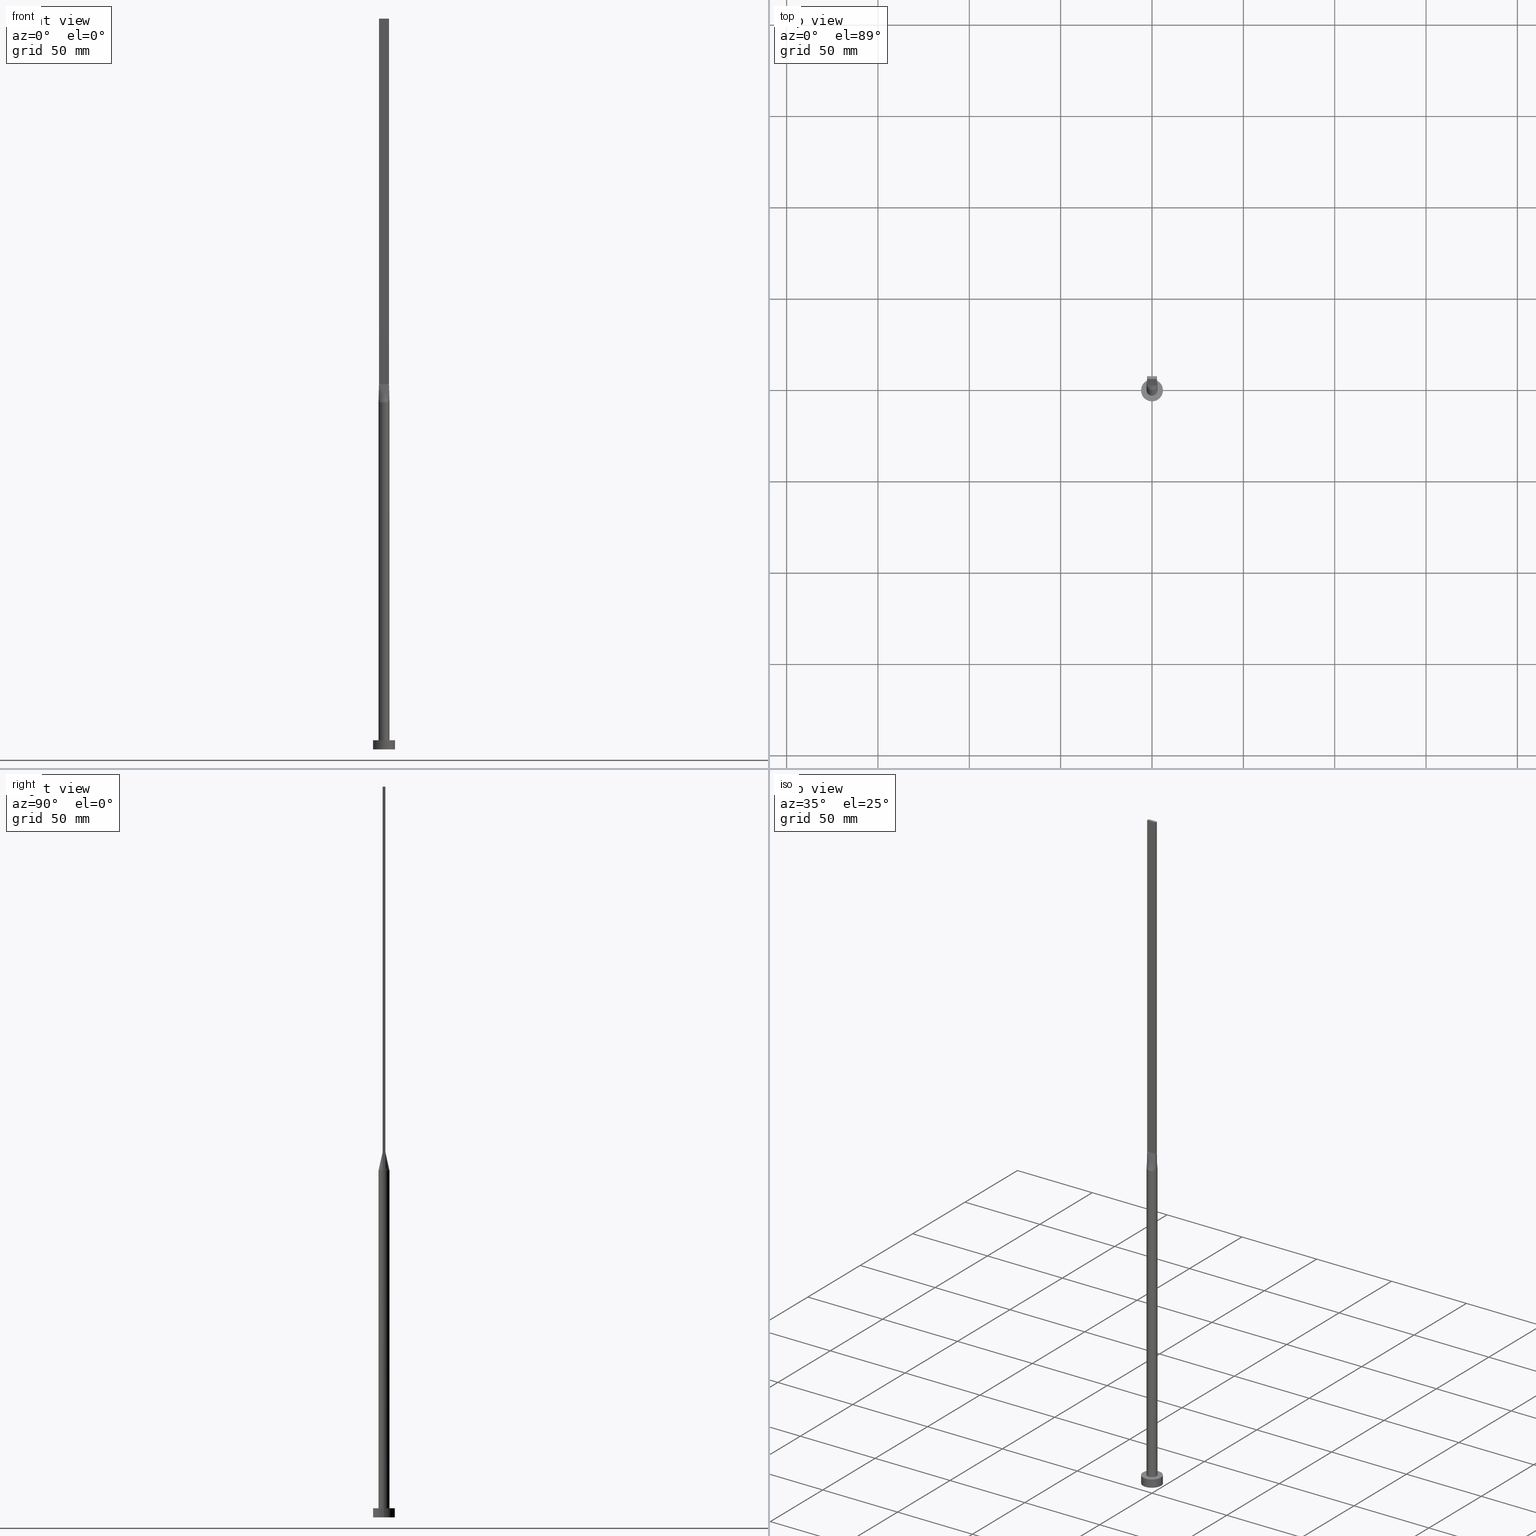
[diagram: canonical four-view strip — front | top / right | iso, engineering-drawing reading convention]
A machine part, canonical four-view strip (front | top / right | iso — engineering-drawing reading convention). The complete STEP part file that produces these views, byte-faithful:
ISO-10303-21;
HEADER;
FILE_DESCRIPTION (( 'STEP AP203' ),
    '1' );
FILE_NAME ('82ba.STEP',
    '2023-02-13T10:49:27',
    ( '' ),
    ( '' ),
    'SwSTEP 2.0',
    'SolidWorks 2019',
    '' );
FILE_SCHEMA (( 'CONFIG_CONTROL_DESIGN' ));
ENDSEC;

DATA;
#1 = DIRECTION ( 'NONE',  ( -1.000000000000000000, 0.000000000000000000, 0.000000000000000000 ) ) ;
#2 = CARTESIAN_POINT ( 'NONE',  ( 0.000000000000000000, 0.000000000000000000, 5.000000000000000000 ) ) ;
#3 = AXIS2_PLACEMENT_3D ( 'NONE', #448, #223, #444 ) ;
#4 = VERTEX_POINT ( 'NONE', #520 ) ;
#5 = PLANE ( 'NONE',  #573 ) ;
#6 = CARTESIAN_POINT ( 'NONE',  ( -6.000000000000000888, 0.000000000000000000, 0.000000000000000000 ) ) ;
#7 = ADVANCED_FACE ( 'NONE', ( #474 ), #274, .T. ) ;
#8 = ORIENTED_EDGE ( 'NONE', *, *, #160, .T. ) ;
#9 = FACE_OUTER_BOUND ( 'NONE', #510, .T. ) ;
#10 = CARTESIAN_POINT ( 'NONE',  ( 2.822145731856598339, 0.7696761086881640512, 195.0000000000000000 ) ) ;
#11 = VERTEX_POINT ( 'NONE', #308 ) ;
#12 = CARTESIAN_POINT ( 'NONE',  ( 2.248179627679386172, 2.014142483996539834, 190.0000000000000284 ) ) ;
#13 = ORIENTED_EDGE ( 'NONE', *, *, #186, .T. ) ;
#14 = CARTESIAN_POINT ( 'NONE',  ( -2.750000000000000000, -0.7499999999999994449, 400.0000000000000000 ) ) ;
#15 = AXIS2_PLACEMENT_3D ( 'NONE', #238, #579, #575 ) ;
#16 = CARTESIAN_POINT ( 'NONE',  ( -1.447928580458858416, 2.653161878569119558, 189.9999999999999716 ) ) ;
#17 = DIRECTION ( 'NONE',  ( 0.000000000000000000, -0.000000000000000000, -1.000000000000000000 ) ) ;
#18 = EDGE_CURVE ( 'NONE', #446, #440, #275, .T. ) ;
#19 = CARTESIAN_POINT ( 'NONE',  ( 1.751288851749022379, 2.458468820606022565, 189.9999999999999716 ) ) ;
#20 = DIRECTION ( 'NONE',  ( 5.913830031739115543E-17, 1.000000000000000000, -0.000000000000000000 ) ) ;
#21 = CARTESIAN_POINT ( 'NONE',  ( 6.000000000000000888, 7.347880794884120722E-16, 5.000000000000000000 ) ) ;
#22 = CC_DESIGN_APPROVAL ( #284, ( #248 ) ) ;
#23 = CARTESIAN_POINT ( 'NONE',  ( -0.4583333333333337034, 0.7500000000000003331, 200.0000000000000000 ) ) ;
#24 = ORIENTED_EDGE ( 'NONE', *, *, #325, .F. ) ;
#25 = ADVANCED_FACE ( 'NONE', ( #400 ), #452, .F. ) ;
#26 = CARTESIAN_POINT ( 'NONE',  ( 0.000000000000000000, 0.000000000000000000, 0.000000000000000000 ) ) ;
#27 = CARTESIAN_POINT ( 'NONE',  ( -0.7628506052746809596, -2.924692134573154245, 189.9999999999999432 ) ) ;
#28 = DIRECTION ( 'NONE',  ( 1.000000000000000000, 0.000000000000000000, 0.000000000000000000 ) ) ;
#29 = CARTESIAN_POINT ( 'NONE',  ( 3.000000000000000888, -0.2678361673275873600, 190.0000000000000568 ) ) ;
#30 = AXIS2_PLACEMENT_3D ( 'NONE', #140, #464, #408 ) ;
#31 = FACE_OUTER_BOUND ( 'NONE', #320, .T. ) ;
#32 = CARTESIAN_POINT ( 'NONE',  ( 0.4583333333333364235, -0.7499999999999995559, 200.0000000000000000 ) ) ;
#33 = ORIENTED_EDGE ( 'NONE', *, *, #499, .T. ) ;
#34 = CARTESIAN_POINT ( 'NONE',  ( 0.000000000000000000, 0.000000000000000000, 5.000000000000000000 ) ) ;
#35 = AXIS2_PLACEMENT_3D ( 'NONE', #215, #164, #86 ) ;
#36 = PERSON_AND_ORGANIZATION_ROLE ( 'design_supplier' ) ;
#37 = APPROVAL_PERSON_ORGANIZATION ( #538, #259, #391 ) ;
#38 = ORIENTED_EDGE ( 'NONE', *, *, #167, .F. ) ;
#39 = AXIS2_PLACEMENT_3D ( 'NONE', #176, #354, #185 ) ;
#40 = CC_DESIGN_PERSON_AND_ORGANIZATION_ASSIGNMENT ( #416, #75, ( #136 ) ) ;
#41 = CARTESIAN_POINT ( 'NONE',  ( 0.4583333333333330373, 0.7500000000000003331, 200.0000000000000284 ) ) ;
#42 = ORIENTED_EDGE ( 'NONE', *, *, #251, .T. ) ;
#43 = SECURITY_CLASSIFICATION_LEVEL ( 'unclassified' ) ;
#44 = DIRECTION ( 'NONE',  ( 1.000000000000000000, -5.913830031739115543E-17, 0.000000000000000000 ) ) ;
#45 = ORIENTED_EDGE ( 'NONE', *, *, #531, .T. ) ;
#46 = EDGE_CURVE ( 'NONE', #4, #443, #249, .T. ) ;
#47 = CARTESIAN_POINT ( 'NONE',  ( 2.733316749964668446, 1.269511353635831341, 189.9999999999999716 ) ) ;
#48 = CIRCLE ( 'NONE', #15, 6.000000000000000888 ) ;
#49 = EDGE_LOOP ( 'NONE', ( #326, #393, #424, #421 ) ) ;
#50 = UNCERTAINTY_MEASURE_WITH_UNIT (LENGTH_MEASURE( 1.000000000000000082E-05 ), #208, 'distance_accuracy_value', 'NONE');
#51 = CARTESIAN_POINT ( 'NONE',  ( 2.750000000000000000, 0.5000000000000006661, 200.0000000000000000 ) ) ;
#52 = VECTOR ( 'NONE', #222, 1000.000000000000000 ) ;
#53 = DIRECTION ( 'NONE',  ( 0.000000000000000000, 0.000000000000000000, 1.000000000000000000 ) ) ;
#54 = VERTEX_POINT ( 'NONE', #6 ) ;
#55 = FACE_OUTER_BOUND ( 'NONE', #313, .T. ) ;
#56 = CARTESIAN_POINT ( 'NONE',  ( -2.894506632021299541, 0.7894116946786272626, 190.0000000000000000 ) ) ;
#57 = CARTESIAN_POINT ( 'NONE',  ( 2.750000000000000000, 0.7500000000000002220, 400.0000000000000000 ) ) ;
#58 = B_SPLINE_CURVE_WITH_KNOTS ( 'NONE', 3,
 ( #508, #324, #512, #505, #156, #19, #369, #145, #458, #333, #70, #110, #285, #501, #466, #469, #280, #112 ),
 .UNSPECIFIED., .F., .F.,
 ( 4, 2, 2, 2, 2, 2, 2, 2, 4 ),
 ( 0.000000000000000000, 0.1250000000000000000, 0.2500000000000000000, 0.3750000000000000000, 0.5000000000000000000, 0.6250000000000000000, 0.7500000000000000000, 0.8750000000000000000, 1.000000000000000000 ),
 .UNSPECIFIED. ) ;
#59 = ORIENTED_EDGE ( 'NONE', *, *, #80, .F. ) ;
#60 = DIRECTION ( 'NONE',  ( 0.000000000000000000, 0.000000000000000000, 1.000000000000000000 ) ) ;
#61 =( GEOMETRIC_REPRESENTATION_CONTEXT ( 3 ) GLOBAL_UNCERTAINTY_ASSIGNED_CONTEXT ( ( #50 ) ) GLOBAL_UNIT_ASSIGNED_CONTEXT ( ( #208, #347, #155 ) ) REPRESENTATION_CONTEXT ( 'NONE', 'WORKASPACE' ) );
#62 = CC_DESIGN_PERSON_AND_ORGANIZATION_ASSIGNMENT ( #572, #486, ( #248 ) ) ;
#63 = DIRECTION ( 'NONE',  ( -0.01442753284129399093, 0.003934781683989408557, 0.9998881756422629552 ) ) ;
#64 = DIRECTION ( 'NONE',  ( -0.000000000000000000, -0.000000000000000000, -1.000000000000000000 ) ) ;
#65 = VERTEX_POINT ( 'NONE', #315 ) ;
#66 = LINE ( 'NONE', #21, #168 ) ;
#67 = ORIENTED_EDGE ( 'NONE', *, *, #18, .T. ) ;
#68 = FACE_OUTER_BOUND ( 'NONE', #146, .T. ) ;
#69 = APPROVAL ( #257, 'NEUR�EN�' ) ;
#70 = CARTESIAN_POINT ( 'NONE',  ( -0.7628506052746797383, 2.924692134573155133, 190.0000000000000284 ) ) ;
#71 = ORIENTED_EDGE ( 'NONE', *, *, #241, .T. ) ;
#72 = CARTESIAN_POINT ( 'NONE',  ( 6.000000000000000888, 7.347880794884120722E-16, 5.000000000000000000 ) ) ;
#73 = AXIS2_PLACEMENT_3D ( 'NONE', #179, #532, #312 ) ;
#74 = LINE ( 'NONE', #242, #368 ) ;
#75 = PERSON_AND_ORGANIZATION_ROLE ( 'creator' ) ;
#76 = DIRECTION ( 'NONE',  ( 1.000000000000000000, 0.000000000000000000, 0.000000000000000000 ) ) ;
#77 = CARTESIAN_POINT ( 'NONE',  ( -1.604166666666664520, -0.7499999999999995559, 200.0000000000000000 ) ) ;
#78 = APPLICATION_PROTOCOL_DEFINITION ( 'international standard', 'config_control_design', 1994, #149 ) ;
#79 = CARTESIAN_POINT ( 'NONE',  ( -2.894291463713197121, -0.7893522173763257710, 190.0000000000000000 ) ) ;
#80 = EDGE_CURVE ( 'NONE', #269, #125, #227, .T. ) ;
#81 = CIRCLE ( 'NONE', #402, 6.000000000000000888 ) ;
#82 = AXIS2_PLACEMENT_3D ( 'NONE', #2, #219, #100 ) ;
#83 = CARTESIAN_POINT ( 'NONE',  ( -2.248179627679386616, -2.014142483996539390, 190.0000000000000000 ) ) ;
#84 = DATE_AND_TIME ( #399, #546 ) ;
#85 = VERTEX_POINT ( 'NONE', #404 ) ;
#86 = DIRECTION ( 'NONE',  ( 1.000000000000000000, 0.000000000000000000, 0.000000000000000000 ) ) ;
#87 = EDGE_CURVE ( 'NONE', #440, #349, #169, .T. ) ;
#88 = DATE_AND_TIME ( #127, #553 ) ;
#89 = ORIENTED_EDGE ( 'NONE', *, *, #109, .T. ) ;
#90 = CALENDAR_DATE ( 2023, 13, 2 ) ;
#91 = VECTOR ( 'NONE', #321, 1000.000000000000000 ) ;
#92 = CARTESIAN_POINT ( 'NONE',  ( 1.447928580458859305, 2.653161878569118670, 190.0000000000000284 ) ) ;
#93 = CARTESIAN_POINT ( 'NONE',  ( 0.000000000000000000, 0.000000000000000000, 5.000000000000000000 ) ) ;
#94 = ORIENTED_EDGE ( 'NONE', *, *, #429, .F. ) ;
#95 = CC_DESIGN_PERSON_AND_ORGANIZATION_ASSIGNMENT ( #216, #36, ( #153 ) ) ;
#96 = DIRECTION ( 'NONE',  ( 1.000000000000000000, 0.000000000000000000, -0.000000000000000000 ) ) ;
#97 = FACE_OUTER_BOUND ( 'NONE', #537, .T. ) ;
#98 = CARTESIAN_POINT ( 'NONE',  ( 2.830829925251657997, 1.022044525068634302, 190.0000000000000000 ) ) ;
#99 = LINE ( 'NONE', #363, #355 ) ;
#100 = DIRECTION ( 'NONE',  ( 1.000000000000000000, 0.000000000000000000, 0.000000000000000000 ) ) ;
#101 = B_SPLINE_SURFACE_WITH_KNOTS ( 'NONE', 3, 1, ( 
 ( #568, #254 ),
 ( #337, #295 ),
 ( #29, #207 ),
 ( #163, #341 ),
 ( #541, #51 ),
 ( #277, #143 ) ),
 .UNSPECIFIED., .F., .F., .F.,
 ( 4, 2, 4 ),
 ( 2, 2 ),
 ( 0.000000000000000000, 0.5000000000000000000, 1.000000000000000000 ),
 ( 0.000000000000000000, 1.000000000000000000 ),
 .UNSPECIFIED. ) ;
#102 = DIRECTION ( 'NONE',  ( -1.000000000000000000, -0.000000000000000000, -0.000000000000000000 ) ) ;
#103 = EDGE_CURVE ( 'NONE', #349, #440, #434, .T. ) ;
#104 = PLANE ( 'NONE',  #206 ) ;
#105 = LINE ( 'NONE', #463, #114 ) ;
#106 = CARTESIAN_POINT ( 'NONE',  ( -2.822145731856598339, 0.7696761086881630520, 195.0000000000000000 ) ) ;
#107 = CARTESIAN_POINT ( 'NONE',  ( -0.2291666666666670460, 0.7500000000000003331, 200.0000000000000284 ) ) ;
#108 = ORIENTED_EDGE ( 'NONE', *, *, #195, .T. ) ;
#109 = EDGE_CURVE ( 'NONE', #128, #142, #278, .T. ) ;
#110 = CARTESIAN_POINT ( 'NONE',  ( -1.447928580458858416, 2.653161878569119558, 189.9999999999999716 ) ) ;
#111 = ORIENTED_EDGE ( 'NONE', *, *, #465, .T. ) ;
#112 = CARTESIAN_POINT ( 'NONE',  ( -2.894506632021299541, 0.7894116946786272626, 190.0000000000000000 ) ) ;
#113 = CC_DESIGN_APPROVAL ( #69, ( #136 ) ) ;
#114 = VECTOR ( 'NONE', #374, 1000.000000000000000 ) ;
#115 = DATE_AND_TIME ( #564, #200 ) ;
#116 = CARTESIAN_POINT ( 'NONE',  ( -1.447928580458859749, -2.653161878569118226, 190.0000000000000000 ) ) ;
#117 = CARTESIAN_POINT ( 'NONE',  ( -2.963522232943966106, -0.5355060635301720495, 190.0000000000000000 ) ) ;
#118 = CARTESIAN_POINT ( 'NONE',  ( -2.520833333333333037, -0.7499999999999994449, 200.0000000000000000 ) ) ;
#119 = EDGE_CURVE ( 'NONE', #450, #65, #379, .T. ) ;
#120 = PERSON_AND_ORGANIZATION_ROLE ( 'design_owner' ) ;
#121 = DIRECTION ( 'NONE',  ( -0.000000000000000000, -0.000000000000000000, -1.000000000000000000 ) ) ;
#122 = LINE ( 'NONE', #260, #525 ) ;
#123 = ORIENTED_EDGE ( 'NONE', *, *, #221, .T. ) ;
#124 = FACE_OUTER_BOUND ( 'NONE', #240, .T. ) ;
#125 = VERTEX_POINT ( 'NONE', #530 ) ;
#126 = ADVANCED_FACE ( 'NONE', ( #359 ), #494, .T. ) ;
#127 = CALENDAR_DATE ( 2023, 13, 2 ) ;
#128 = VERTEX_POINT ( 'NONE', #453 ) ;
#129 = PERSON_AND_ORGANIZATION ( #488, #432 ) ;
#130 = CARTESIAN_POINT ( 'NONE',  ( 1.751288851749022379, 2.458468820606022565, 189.9999999999999716 ) ) ;
#131 = MANIFOLD_SOLID_BREP ( 'P�idat vysunut�m5', #237 ) ;
#132 = DIRECTION ( 'NONE',  ( 1.000000000000000000, 0.000000000000000000, 0.000000000000000000 ) ) ;
#133 = VECTOR ( 'NONE', #250, 1000.000000000000000 ) ;
#134 = ORIENTED_EDGE ( 'NONE', *, *, #577, .T. ) ;
#135 = DIRECTION ( 'NONE',  ( 1.000000000000000000, 0.000000000000000000, -0.000000000000000000 ) ) ;
#136 = PRODUCT_DEFINITION ( 'NEZN�M�', '', #153, #317 ) ;
#137 = DIRECTION ( 'NONE',  ( 1.000000000000000000, 0.000000000000000000, 0.000000000000000000 ) ) ;
#138 = DIRECTION ( 'NONE',  ( 0.000000000000000000, 0.000000000000000000, 1.000000000000000000 ) ) ;
#139 = EDGE_LOOP ( 'NONE', ( #217, #467, #94, #243, #67, #272 ) ) ;
#140 = CARTESIAN_POINT ( 'NONE',  ( 0.000000000000000000, 0.000000000000000000, 0.000000000000000000 ) ) ;
#141 = CARTESIAN_POINT ( 'NONE',  ( -3.000000000000000444, 0.000000000000000000, 190.0000000000000000 ) ) ;
#142 = VERTEX_POINT ( 'NONE', #539 ) ;
#143 = CARTESIAN_POINT ( 'NONE',  ( 2.750000000000000000, 0.7500000000000002220, 200.0000000000000000 ) ) ;
#144 = ADVANCED_FACE ( 'NONE', ( #362 ), #536, .F. ) ;
#145 = CARTESIAN_POINT ( 'NONE',  ( 0.7628506052746800714, 2.924692134573154689, 190.0000000000000284 ) ) ;
#146 = EDGE_LOOP ( 'NONE', ( #151, #563, #231, #540, #343, #534 ) ) ;
#147 = LINE ( 'NONE', #460, #451 ) ;
#148 = DIRECTION ( 'NONE',  ( -1.000000000000000000, 0.000000000000000000, 0.000000000000000000 ) ) ;
#149 = APPLICATION_CONTEXT ( 'configuration controlled 3d designs of mechanical parts and assemblies' ) ;
#150 = CARTESIAN_POINT ( 'NONE',  ( 2.750000000000000000, 0.7500000000000002220, 200.0000000000000000 ) ) ;
#151 = ORIENTED_EDGE ( 'NONE', *, *, #465, .F. ) ;
#152 = ADVANCED_FACE ( 'NONE', ( #55 ), #366, .T. ) ;
#153 = PRODUCT_DEFINITION_FORMATION_WITH_SPECIFIED_SOURCE ( 'LIBOVOLN�', '', #502, .NOT_KNOWN. ) ;
#154 = LINE ( 'NONE', #150, #514 ) ;
#155 =( NAMED_UNIT ( * ) SI_UNIT ( $, .STERADIAN. ) SOLID_ANGLE_UNIT ( ) );
#156 = CARTESIAN_POINT ( 'NONE',  ( 2.248179627679386172, 2.014142483996539834, 190.0000000000000284 ) ) ;
#157 = APPROVAL_PERSON_ORGANIZATION ( #253, #69, #428 ) ;
#158 = DIRECTION ( 'NONE',  ( -0.000000000000000000, -0.000000000000000000, -1.000000000000000000 ) ) ;
#159 = CARTESIAN_POINT ( 'NONE',  ( 0.000000000000000000, 0.000000000000000000, 5.000000000000000000 ) ) ;
#160 = EDGE_CURVE ( 'NONE', #331, #247, #74, .T. ) ;
#161 = CARTESIAN_POINT ( 'NONE',  ( 2.750000000000000000, 0.7500000000000002220, 400.0000000000000000 ) ) ;
#162 = ORIENTED_EDGE ( 'NONE', *, *, #332, .T. ) ;
#163 = CARTESIAN_POINT ( 'NONE',  ( 3.000000000000000444, 0.2678361673275868049, 190.0000000000000284 ) ) ;
#164 = DIRECTION ( 'NONE',  ( 0.000000000000000000, 0.000000000000000000, 1.000000000000000000 ) ) ;
#165 = DATE_TIME_ROLE ( 'creation_date' ) ;
#166 = CARTESIAN_POINT ( 'NONE',  ( -2.291666666666665186, -0.7499999999999995559, 200.0000000000000000 ) ) ;
#167 = EDGE_CURVE ( 'NONE', #470, #11, #105, .T. ) ;
#168 = VECTOR ( 'NONE', #198, 1000.000000000000000 ) ;
#169 = CIRCLE ( 'NONE', #395, 3.000000000000000444 ) ;
#170 = AXIS2_PLACEMENT_3D ( 'NONE', #403, #53, #445 ) ;
#171 = DATE_TIME_ROLE ( 'classification_date' ) ;
#172 = CARTESIAN_POINT ( 'NONE',  ( 1.751288851749020603, -2.458468820606023897, 190.0000000000000000 ) ) ;
#173 = APPROVAL_STATUS ( 'not_yet_approved' ) ;
#174 = SHAPE_DEFINITION_REPRESENTATION ( #468, #218 ) ;
#175 = CARTESIAN_POINT ( 'NONE',  ( -1.145833333333330817, -0.7499999999999995559, 200.0000000000000284 ) ) ;
#176 = CARTESIAN_POINT ( 'NONE',  ( 0.000000000000000000, 0.000000000000000000, 5.000000000000000000 ) ) ;
#177 = ORIENTED_EDGE ( 'NONE', *, *, #371, .F. ) ;
#178 = AXIS2_PLACEMENT_3D ( 'NONE', #194, #549, #76 ) ;
#179 = CARTESIAN_POINT ( 'NONE',  ( 0.000000000000000000, 0.000000000000000000, 190.0000000000000000 ) ) ;
#180 = ORIENTED_EDGE ( 'NONE', *, *, #523, .F. ) ;
#181 = DIRECTION ( 'NONE',  ( 0.000000000000000000, 0.000000000000000000, 1.000000000000000000 ) ) ;
#182 = CARTESIAN_POINT ( 'NONE',  ( -2.750000000000000000, -0.7499999999999994449, 200.0000000000000000 ) ) ;
#183 = ORIENTED_EDGE ( 'NONE', *, *, #298, .F. ) ;
#184 = B_SPLINE_SURFACE_WITH_KNOTS ( 'NONE', 3, 1, ( 
 ( #348, #557 ),
 ( #339, #342 ),
 ( #477, #473 ),
 ( #426, #517 ),
 ( #117, #480 ),
 ( #365, #229 ) ),
 .UNSPECIFIED., .F., .F., .F.,
 ( 4, 2, 4 ),
 ( 2, 2 ),
 ( 0.000000000000000000, 0.5000000000000000000, 1.000000000000000000 ),
 ( 0.000000000000000000, 1.000000000000000000 ),
 .UNSPECIFIED. ) ;
#185 = DIRECTION ( 'NONE',  ( -1.000000000000000000, 0.000000000000000000, 0.000000000000000000 ) ) ;
#186 = EDGE_CURVE ( 'NONE', #142, #85, #196, .T. ) ;
#187 = CARTESIAN_POINT ( 'NONE',  ( -2.750000000000000000, 0.7500000000000002220, 400.0000000000000000 ) ) ;
#188 = FACE_OUTER_BOUND ( 'NONE', #139, .T. ) ;
#189 = CC_DESIGN_APPROVAL ( #259, ( #153 ) ) ;
#190 = ORIENTED_EDGE ( 'NONE', *, *, #556, .F. ) ;
#191 = DIRECTION ( 'NONE',  ( -1.000000000000000000, 5.913830031739115543E-17, 0.000000000000000000 ) ) ;
#192 = CARTESIAN_POINT ( 'NONE',  ( 0.000000000000000000, 0.000000000000000000, 5.000000000000000000 ) ) ;
#193 = CARTESIAN_POINT ( 'NONE',  ( -1.145833333333333703, 0.7500000000000002220, 200.0000000000000000 ) ) ;
#194 = CARTESIAN_POINT ( 'NONE',  ( 0.000000000000000000, 0.000000000000000000, 190.0000000000000000 ) ) ;
#195 = EDGE_CURVE ( 'NONE', #11, #269, #548, .T. ) ;
#196 = LINE ( 'NONE', #412, #441 ) ;
#197 = CARTESIAN_POINT ( 'NONE',  ( 0.000000000000000000, 0.000000000000000000, 400.0000000000000000 ) ) ;
#198 = DIRECTION ( 'NONE',  ( -0.000000000000000000, -0.000000000000000000, -1.000000000000000000 ) ) ;
#199 = EDGE_LOOP ( 'NONE', ( #13, #417, #375, #401 ) ) ;
#200 = LOCAL_TIME ( 11, 49, 27.00000000000000000, #558 ) ;
#201 = CARTESIAN_POINT ( 'NONE',  ( -0.3818979204996078569, 3.000000000000000888, 190.0000000000000284 ) ) ;
#202 = EDGE_LOOP ( 'NONE', ( #323, #134 ) ) ;
#203 = DIRECTION ( 'NONE',  ( -0.000000000000000000, -0.000000000000000000, -1.000000000000000000 ) ) ;
#204 = ORIENTED_EDGE ( 'NONE', *, *, #542, .F. ) ;
#205 = EDGE_CURVE ( 'NONE', #125, #142, #154, .T. ) ;
#206 = AXIS2_PLACEMENT_3D ( 'NONE', #14, #20, #191 ) ;
#207 = CARTESIAN_POINT ( 'NONE',  ( 2.750000000000000000, -0.2499999999999990286, 200.0000000000000000 ) ) ;
#208 =( LENGTH_UNIT ( ) NAMED_UNIT ( * ) SI_UNIT ( .MILLI., .METRE. ) );
#209 = CARTESIAN_POINT ( 'NONE',  ( -2.750000000000000000, -0.7499999999999994449, 400.0000000000000000 ) ) ;
#210 = EDGE_LOOP ( 'NONE', ( #311, #334, #33, #24 ) ) ;
#211 = CARTESIAN_POINT ( 'NONE',  ( -2.822145731856598783, -0.7696761086881626079, 195.0000000000000000 ) ) ;
#212 = ADVANCED_FACE ( 'NONE', ( #188 ), #509, .T. ) ;
#213 = CARTESIAN_POINT ( 'NONE',  ( 1.447928580458857972, -2.653161878569119558, 189.9999999999999432 ) ) ;
#214 = CARTESIAN_POINT ( 'NONE',  ( 0.000000000000000000, 0.000000000000000000, 190.0000000000000000 ) ) ;
#215 = CARTESIAN_POINT ( 'NONE',  ( 0.000000000000000000, 0.000000000000000000, 190.0000000000000000 ) ) ;
#216 = PERSON_AND_ORGANIZATION ( #488, #432 ) ;
#217 = ORIENTED_EDGE ( 'NONE', *, *, #454, .F. ) ;
#218 = ADVANCED_BREP_SHAPE_REPRESENTATION ( '82ba', ( #131, #30 ), #61 ) ;
#219 = DIRECTION ( 'NONE',  ( 0.000000000000000000, 0.000000000000000000, 1.000000000000000000 ) ) ;
#220 = ORIENTED_EDGE ( 'NONE', *, *, #109, .F. ) ;
#221 = EDGE_CURVE ( 'NONE', #128, #381, #58, .T. ) ;
#222 = DIRECTION ( 'NONE',  ( -0.01442753284129399093, -0.003934781683989386873, 0.9998881756422629552 ) ) ;
#223 = DIRECTION ( 'NONE',  ( 0.000000000000000000, 0.000000000000000000, 1.000000000000000000 ) ) ;
#224 = LOCAL_TIME ( 11, 49, 27.00000000000000000, #570 ) ;
#225 = CARTESIAN_POINT ( 'NONE',  ( 0.000000000000000000, 0.000000000000000000, 0.000000000000000000 ) ) ;
#226 = ORIENTED_EDGE ( 'NONE', *, *, #493, .F. ) ;
#227 = LINE ( 'NONE', #182, #411 ) ;
#228 = EDGE_CURVE ( 'NONE', #443, #358, #66, .T. ) ;
#229 = CARTESIAN_POINT ( 'NONE',  ( -2.750000000000000000, -0.7499999999999993339, 200.0000000000000000 ) ) ;
#230 = CARTESIAN_POINT ( 'NONE',  ( 2.291666666666666519, 0.7500000000000002220, 200.0000000000000000 ) ) ;
#231 = ORIENTED_EDGE ( 'NONE', *, *, #103, .T. ) ;
#232 = FACE_OUTER_BOUND ( 'NONE', #516, .T. ) ;
#233 = DIRECTION ( 'NONE',  ( -1.000000000000000000, 0.000000000000000000, 0.000000000000000000 ) ) ;
#234 = CIRCLE ( 'NONE', #367, 3.000000000000000444 ) ;
#235 = ORIENTED_EDGE ( 'NONE', *, *, #523, .T. ) ;
#236 = CARTESIAN_POINT ( 'NONE',  ( 2.750000000000000000, 0.7500000000000002220, 400.0000000000000000 ) ) ;
#237 = CLOSED_SHELL ( 'NONE', ( #551, #447, #126, #291, #25, #212, #7, #344, #266, #152, #394, #144, #387, #314, #352 ) ) ;
#238 = CARTESIAN_POINT ( 'NONE',  ( 0.000000000000000000, 0.000000000000000000, 0.000000000000000000 ) ) ;
#239 = CARTESIAN_POINT ( 'NONE',  ( -0.9166666666666669627, 0.7500000000000002220, 200.0000000000000000 ) ) ;
#240 = EDGE_LOOP ( 'NONE', ( #296, #183, #545, #503 ) ) ;
#241 = EDGE_CURVE ( 'NONE', #247, #470, #376, .T. ) ;
#242 = CARTESIAN_POINT ( 'NONE',  ( 2.750000000000000000, -0.7499999999999997780, 400.0000000000000000 ) ) ;
#243 = ORIENTED_EDGE ( 'NONE', *, *, #251, .F. ) ;
#244 = CARTESIAN_POINT ( 'NONE',  ( 2.750000000000000000, -0.7499999999999997780, 400.0000000000000000 ) ) ;
#245 = CARTESIAN_POINT ( 'NONE',  ( -1.751288851749021491, 2.458468820606022565, 190.0000000000000284 ) ) ;
#246 = VECTOR ( 'NONE', #233, 1000.000000000000000 ) ;
#247 = VERTEX_POINT ( 'NONE', #161 ) ;
#248 = SECURITY_CLASSIFICATION ( '', '', #43 ) ;
#249 = CIRCLE ( 'NONE', #170, 6.000000000000000888 ) ;
#250 = DIRECTION ( 'NONE',  ( -0.000000000000000000, -0.000000000000000000, -1.000000000000000000 ) ) ;
#251 = EDGE_CURVE ( 'NONE', #446, #506, #571, .T. ) ;
#252 = CARTESIAN_POINT ( 'NONE',  ( 2.442412046818594362, -1.765588549521970751, 190.0000000000000000 ) ) ;
#253 = PERSON_AND_ORGANIZATION ( #488, #432 ) ;
#254 = CARTESIAN_POINT ( 'NONE',  ( 2.750000000000000000, -0.7499999999999997780, 200.0000000000000000 ) ) ;
#255 = DIRECTION ( 'NONE',  ( 0.000000000000000000, 0.000000000000000000, 1.000000000000000000 ) ) ;
#256 = CARTESIAN_POINT ( 'NONE',  ( -0.9166666666666638541, -0.7499999999999995559, 200.0000000000000284 ) ) ;
#257 = APPROVAL_STATUS ( 'not_yet_approved' ) ;
#258 = VECTOR ( 'NONE', #524, 1000.000000000000000 ) ;
#259 = APPROVAL ( #173, 'NEUR�EN�' ) ;
#260 = CARTESIAN_POINT ( 'NONE',  ( -2.750000000000000000, 0.7500000000000002220, 200.0000000000000000 ) ) ;
#261 = CARTESIAN_POINT ( 'NONE',  ( 0.2291666666666698216, -0.7499999999999995559, 200.0000000000000284 ) ) ;
#262 = CARTESIAN_POINT ( 'NONE',  ( -2.733316749964668446, -1.269511353635829787, 190.0000000000000568 ) ) ;
#263 = CIRCLE ( 'NONE', #178, 3.000000000000000444 ) ;
#264 = COORDINATED_UNIVERSAL_TIME_OFFSET ( 1, 0, .AHEAD. ) ;
#265 = CARTESIAN_POINT ( 'NONE',  ( 0.9166666666666664076, 0.7500000000000003331, 200.0000000000000284 ) ) ;
#266 = ADVANCED_FACE ( 'NONE', ( #31 ), #184, .T. ) ;
#267 = ORIENTED_EDGE ( 'NONE', *, *, #371, .T. ) ;
#268 = CARTESIAN_POINT ( 'NONE',  ( 2.894291463713197121, 0.7893522173763263261, 190.0000000000000000 ) ) ;
#269 = VERTEX_POINT ( 'NONE', #457 ) ;
#270 = DATE_AND_TIME ( #90, #224 ) ;
#271 = CARTESIAN_POINT ( 'NONE',  ( 2.750000000000000000, -0.7499999999999997780, 200.0000000000000000 ) ) ;
#272 = ORIENTED_EDGE ( 'NONE', *, *, #87, .T. ) ;
#273 = DIRECTION ( 'NONE',  ( -0.000000000000000000, -0.000000000000000000, -1.000000000000000000 ) ) ;
#274 = B_SPLINE_SURFACE_WITH_KNOTS ( 'NONE', 3, 1, ( 
 ( #79, #576 ),
 ( #482, #118 ),
 ( #262, #166 ),
 ( #478, #300 ),
 ( #83, #77 ),
 ( #439, #175 ),
 ( #116, #256 ),
 ( #27, #574 ),
 ( #567, #433 ),
 ( #340, #261 ),
 ( #294, #32 ),
 ( #213, #388 ),
 ( #172, #351 ),
 ( #565, #529 ),
 ( #252, #427 ),
 ( #389, #526 ),
 ( #304, #487 ),
 ( #500, #271 ) ),
 .UNSPECIFIED., .F., .F., .F.,
 ( 4, 2, 2, 2, 2, 2, 2, 2, 4 ),
 ( 2, 2 ),
 ( 0.000000000000000000, 0.1250000000000000000, 0.2500000000000000000, 0.3750000000000000000, 0.5000000000000000000, 0.6250000000000000000, 0.7500000000000000000, 0.8750000000000000000, 1.000000000000000000 ),
 ( 0.000000000000000000, 1.000000000000000000 ),
 .UNSPECIFIED. ) ;
#275 = LINE ( 'NONE', #141, #535 ) ;
#276 = AXIS2_PLACEMENT_3D ( 'NONE', #225, #138, #135 ) ;
#277 = CARTESIAN_POINT ( 'NONE',  ( 2.894291463713196677, 0.7893522173763277694, 190.0000000000000000 ) ) ;
#278 = LINE ( 'NONE', #10, #52 ) ;
#279 = ORIENTED_EDGE ( 'NONE', *, *, #493, .T. ) ;
#280 = CARTESIAN_POINT ( 'NONE',  ( -2.830829925251659329, 1.022044525068634302, 190.0000000000000568 ) ) ;
#281 = PLANE ( 'NONE',  #309 ) ;
#282 = DIRECTION ( 'NONE',  ( -0.000000000000000000, -0.000000000000000000, -1.000000000000000000 ) ) ;
#283 = CARTESIAN_POINT ( 'NONE',  ( -2.830829925251659329, 1.022044525068634302, 190.0000000000000568 ) ) ;
#284 = APPROVAL ( #397, 'NEUR�EN�' ) ;
#285 = CARTESIAN_POINT ( 'NONE',  ( -1.751288851749021491, 2.458468820606022565, 190.0000000000000284 ) ) ;
#286 = ORIENTED_EDGE ( 'NONE', *, *, #205, .F. ) ;
#287 = CARTESIAN_POINT ( 'NONE',  ( -1.833333333333333481, 0.7500000000000002220, 200.0000000000000000 ) ) ;
#288 = ORIENTED_EDGE ( 'NONE', *, *, #195, .F. ) ;
#289 = DIRECTION ( 'NONE',  ( 0.000000000000000000, 0.000000000000000000, 1.000000000000000000 ) ) ;
#290 = APPLICATION_CONTEXT ( 'configuration controlled 3d designs of mechanical parts and assemblies' ) ;
#291 = ADVANCED_FACE ( 'NONE', ( #462, #406 ), #415, .T. ) ;
#292 = CARTESIAN_POINT ( 'NONE',  ( -0.7628506052746797383, 2.924692134573155133, 190.0000000000000284 ) ) ;
#293 = LOCAL_TIME ( 11, 49, 27.00000000000000000, #345 ) ;
#294 = CARTESIAN_POINT ( 'NONE',  ( 0.7628506052746785171, -2.924692134573155577, 190.0000000000000000 ) ) ;
#295 = CARTESIAN_POINT ( 'NONE',  ( 2.750000000000000000, -0.4999999999999992784, 200.0000000000000000 ) ) ;
#296 = ORIENTED_EDGE ( 'NONE', *, *, #205, .T. ) ;
#297 = FACE_OUTER_BOUND ( 'NONE', #210, .T. ) ;
#298 = EDGE_CURVE ( 'NONE', #247, #142, #346, .T. ) ;
#299 = CARTESIAN_POINT ( 'NONE',  ( 2.750000000000000000, 0.7500000000000002220, 400.0000000000000000 ) ) ;
#300 = CARTESIAN_POINT ( 'NONE',  ( -1.833333333333331261, -0.7499999999999995559, 200.0000000000000000 ) ) ;
#301 = DATE_AND_TIME ( #522, #293 ) ;
#302 = AXIS2_PLACEMENT_3D ( 'NONE', #192, #273, #1 ) ;
#303 = CARTESIAN_POINT ( 'NONE',  ( 3.000000000000000444, 3.673940397442060361E-16, 190.0000000000000000 ) ) ;
#304 = CARTESIAN_POINT ( 'NONE',  ( 2.830829925251657997, -1.022044525068636078, 190.0000000000000284 ) ) ;
#305 = CARTESIAN_POINT ( 'NONE',  ( 2.750000000000000000, -0.7499999999999997780, 400.0000000000000000 ) ) ;
#306 = EDGE_LOOP ( 'NONE', ( #455, #459 ) ) ;
#307 = PRODUCT_RELATED_PRODUCT_CATEGORY ( 'detail', '', ( #502 ) ) ;
#308 = CARTESIAN_POINT ( 'NONE',  ( -2.750000000000000000, -0.7499999999999994449, 400.0000000000000000 ) ) ;
#309 = AXIS2_PLACEMENT_3D ( 'NONE', #236, #414, #17 ) ;
#310 = DIRECTION ( 'NONE',  ( -0.000000000000000000, 0.000000000000000000, -1.000000000000000000 ) ) ;
#311 = ORIENTED_EDGE ( 'NONE', *, *, #577, .F. ) ;
#312 = DIRECTION ( 'NONE',  ( 1.000000000000000000, -5.329070518200751394E-15, 0.000000000000000000 ) ) ;
#313 = EDGE_LOOP ( 'NONE', ( #123, #267, #513, #220 ) ) ;
#314 = ADVANCED_FACE ( 'NONE', ( #124 ), #5, .F. ) ;
#315 = CARTESIAN_POINT ( 'NONE',  ( 3.000000000000000888, 4.817174831141495148E-17, 190.0000000000000284 ) ) ;
#316 = ORIENTED_EDGE ( 'NONE', *, *, #87, .F. ) ;
#317 = DESIGN_CONTEXT ( 'detailed design', #149, 'design' ) ;
#318 = PLANE ( 'NONE',  #335 ) ;
#319 = DIRECTION ( 'NONE',  ( 0.000000000000000000, 0.000000000000000000, 1.000000000000000000 ) ) ;
#320 = EDGE_LOOP ( 'NONE', ( #162, #42, #436, #204, #177 ) ) ;
#321 = DIRECTION ( 'NONE',  ( 0.01442753284129399093, -0.003934781683989191717, 0.9998881756422629552 ) ) ;
#322 = CARTESIAN_POINT ( 'NONE',  ( -2.750000000000000000, 0.7500000000000002220, 200.0000000000000000 ) ) ;
#323 = ORIENTED_EDGE ( 'NONE', *, *, #46, .T. ) ;
#324 = CARTESIAN_POINT ( 'NONE',  ( 2.830829925251657997, 1.022044525068634302, 190.0000000000000000 ) ) ;
#325 = EDGE_CURVE ( 'NONE', #4, #54, #437, .T. ) ;
#326 = ORIENTED_EDGE ( 'NONE', *, *, #228, .F. ) ;
#327 = MECHANICAL_CONTEXT ( 'NONE', #290, 'mechanical' ) ;
#328 = CARTESIAN_POINT ( 'NONE',  ( -2.750000000000000000, -0.7499999999999994449, 400.0000000000000000 ) ) ;
#329 = AXIS2_PLACEMENT_3D ( 'NONE', #382, #203, #338 ) ;
#330 = CARTESIAN_POINT ( 'NONE',  ( -1.604166666666666963, 0.7500000000000002220, 200.0000000000000000 ) ) ;
#331 = VERTEX_POINT ( 'NONE', #305 ) ;
#332 = EDGE_CURVE ( 'NONE', #381, #446, #234, .T. ) ;
#333 = CARTESIAN_POINT ( 'NONE',  ( -0.3818979204996078569, 3.000000000000000888, 190.0000000000000284 ) ) ;
#334 = ORIENTED_EDGE ( 'NONE', *, *, #228, .T. ) ;
#335 = AXIS2_PLACEMENT_3D ( 'NONE', #197, #60, #370 ) ;
#336 = EDGE_LOOP ( 'NONE', ( #316, #552 ) ) ;
#337 = CARTESIAN_POINT ( 'NONE',  ( 2.963522232943966106, -0.5355060635301738259, 189.9999999999999716 ) ) ;
#338 = DIRECTION ( 'NONE',  ( -1.000000000000000000, 0.000000000000000000, 0.000000000000000000 ) ) ;
#339 = CARTESIAN_POINT ( 'NONE',  ( -2.963522232943965662, 0.5355060635301726046, 189.9999999999999716 ) ) ;
#340 = CARTESIAN_POINT ( 'NONE',  ( 0.3818979204996068022, -3.000000000000001332, 189.9999999999999432 ) ) ;
#341 = CARTESIAN_POINT ( 'NONE',  ( 2.750000000000000000, 0.2500000000000009437, 200.0000000000000000 ) ) ;
#342 = CARTESIAN_POINT ( 'NONE',  ( -2.750000000000000000, 0.5000000000000004441, 200.0000000000000000 ) ) ;
#343 = ORIENTED_EDGE ( 'NONE', *, *, #332, .F. ) ;
#344 = ADVANCED_FACE ( 'NONE', ( #97 ), #101, .T. ) ;
#345 = COORDINATED_UNIVERSAL_TIME_OFFSET ( 1, 0, .AHEAD. ) ;
#346 = LINE ( 'NONE', #299, #258 ) ;
#347 =( NAMED_UNIT ( * ) PLANE_ANGLE_UNIT ( ) SI_UNIT ( $, .RADIAN. ) );
#348 = CARTESIAN_POINT ( 'NONE',  ( -2.894291463713196677, 0.7893522173763264371, 190.0000000000000000 ) ) ;
#349 = VERTEX_POINT ( 'NONE', #373 ) ;
#350 = PERSON_AND_ORGANIZATION ( #488, #432 ) ;
#351 = CARTESIAN_POINT ( 'NONE',  ( 1.145833333333335924, -0.7499999999999996669, 200.0000000000000000 ) ) ;
#352 = ADVANCED_FACE ( 'NONE', ( #9 ), #318, .T. ) ;
#353 = CARTESIAN_POINT ( 'NONE',  ( 1.604166666666666519, 0.7500000000000002220, 200.0000000000000000 ) ) ;
#354 = DIRECTION ( 'NONE',  ( -0.000000000000000000, -0.000000000000000000, -1.000000000000000000 ) ) ;
#355 = VECTOR ( 'NONE', #282, 1000.000000000000000 ) ;
#356 = APPROVAL_DATE_TIME ( #88, #284 ) ;
#357 = CARTESIAN_POINT ( 'NONE',  ( 1.833333333333333037, 0.7500000000000002220, 200.0000000000000000 ) ) ;
#358 = VERTEX_POINT ( 'NONE', #361 ) ;
#359 = FACE_OUTER_BOUND ( 'NONE', #49, .T. ) ;
#360 = ORIENTED_EDGE ( 'NONE', *, *, #542, .T. ) ;
#361 = CARTESIAN_POINT ( 'NONE',  ( 6.000000000000000888, 7.347880794884120722E-16, 0.000000000000000000 ) ) ;
#362 = FACE_OUTER_BOUND ( 'NONE', #385, .T. ) ;
#363 = CARTESIAN_POINT ( 'NONE',  ( -2.750000000000000000, 0.7500000000000002220, 400.0000000000000000 ) ) ;
#364 = CIRCLE ( 'NONE', #384, 6.000000000000000888 ) ;
#365 = CARTESIAN_POINT ( 'NONE',  ( -2.894291463713197121, -0.7893522173763259930, 190.0000000000000000 ) ) ;
#366 = B_SPLINE_SURFACE_WITH_KNOTS ( 'NONE', 3, 1, ( 
 ( #268, #449 ),
 ( #98, #543 ),
 ( #47, #230 ),
 ( #407, #357 ),
 ( #12, #353 ),
 ( #130, #491 ),
 ( #92, #265 ),
 ( #442, #41 ),
 ( #398, #581 ),
 ( #201, #107 ),
 ( #292, #23 ),
 ( #16, #239 ),
 ( #245, #193 ),
 ( #471, #330 ),
 ( #380, #287 ),
 ( #554, #550 ),
 ( #283, #372 ),
 ( #555, #322 ) ),
 .UNSPECIFIED., .F., .F., .F.,
 ( 4, 2, 2, 2, 2, 2, 2, 2, 4 ),
 ( 2, 2 ),
 ( 0.000000000000000000, 0.1250000000000000000, 0.2500000000000000000, 0.3750000000000000000, 0.5000000000000000000, 0.6250000000000000000, 0.7500000000000000000, 0.8750000000000000000, 1.000000000000000000 ),
 ( 0.000000000000000000, 1.000000000000000000 ),
 .UNSPECIFIED. ) ;
#367 = AXIS2_PLACEMENT_3D ( 'NONE', #214, #390, #137 ) ;
#368 = VECTOR ( 'NONE', #423, 1000.000000000000000 ) ;
#369 = CARTESIAN_POINT ( 'NONE',  ( 1.447928580458859305, 2.653161878569118670, 190.0000000000000284 ) ) ;
#370 = DIRECTION ( 'NONE',  ( 1.000000000000000000, 0.000000000000000000, -0.000000000000000000 ) ) ;
#371 = EDGE_CURVE ( 'NONE', #381, #85, #456, .T. ) ;
#372 = CARTESIAN_POINT ( 'NONE',  ( -2.520833333333333037, 0.7500000000000002220, 200.0000000000000000 ) ) ;
#373 = CARTESIAN_POINT ( 'NONE',  ( 3.000000000000000444, 3.673940397442060361E-16, 5.000000000000000000 ) ) ;
#374 = DIRECTION ( 'NONE',  ( 0.000000000000000000, -1.000000000000000000, 0.000000000000000000 ) ) ;
#375 = ORIENTED_EDGE ( 'NONE', *, *, #241, .F. ) ;
#376 = LINE ( 'NONE', #57, #246 ) ;
#377 = CC_DESIGN_SECURITY_CLASSIFICATION ( #248, ( #153 ) ) ;
#378 = CC_DESIGN_PERSON_AND_ORGANIZATION_ASSIGNMENT ( #476, #120, ( #502 ) ) ;
#379 = CIRCLE ( 'NONE', #73, 3.000000000000000444 ) ;
#380 = CARTESIAN_POINT ( 'NONE',  ( -2.442412046818596139, 1.765588549521969641, 190.0000000000000284 ) ) ;
#381 = VERTEX_POINT ( 'NONE', #56 ) ;
#382 = CARTESIAN_POINT ( 'NONE',  ( 0.000000000000000000, 0.000000000000000000, 190.0000000000000000 ) ) ;
#383 = DIRECTION ( 'NONE',  ( -1.000000000000000000, 0.000000000000000000, 0.000000000000000000 ) ) ;
#384 = AXIS2_PLACEMENT_3D ( 'NONE', #26, #289, #28 ) ;
#385 = EDGE_LOOP ( 'NONE', ( #360, #288, #38, #405 ) ) ;
#386 = CARTESIAN_POINT ( 'NONE',  ( -3.000000000000000000, -1.912111867153115409E-16, 190.0000000000000284 ) ) ;
#387 = ADVANCED_FACE ( 'NONE', ( #232 ), #104, .F. ) ;
#388 = CARTESIAN_POINT ( 'NONE',  ( 0.9166666666666695162, -0.7499999999999995559, 200.0000000000000000 ) ) ;
#389 = CARTESIAN_POINT ( 'NONE',  ( 2.733316749964666670, -1.269511353635832229, 190.0000000000000284 ) ) ;
#390 = DIRECTION ( 'NONE',  ( 0.000000000000000000, 0.000000000000000000, 1.000000000000000000 ) ) ;
#391 = APPROVAL_ROLE ( '' ) ;
#392 = PERSON_AND_ORGANIZATION_ROLE ( 'creator' ) ;
#393 = ORIENTED_EDGE ( 'NONE', *, *, #46, .F. ) ;
#394 = ADVANCED_FACE ( 'NONE', ( #504 ), #281, .F. ) ;
#395 = AXIS2_PLACEMENT_3D ( 'NONE', #93, #319, #132 ) ;
#396 = ORIENTED_EDGE ( 'NONE', *, *, #80, .T. ) ;
#397 = APPROVAL_STATUS ( 'not_yet_approved' ) ;
#398 = CARTESIAN_POINT ( 'NONE',  ( 0.3818979204996085230, 3.000000000000001332, 190.0000000000000284 ) ) ;
#399 = CALENDAR_DATE ( 2023, 13, 2 ) ;
#400 = FACE_OUTER_BOUND ( 'NONE', #306, .T. ) ;
#401 = ORIENTED_EDGE ( 'NONE', *, *, #298, .T. ) ;
#402 = AXIS2_PLACEMENT_3D ( 'NONE', #159, #255, #431 ) ;
#403 = CARTESIAN_POINT ( 'NONE',  ( 0.000000000000000000, 0.000000000000000000, 5.000000000000000000 ) ) ;
#404 = CARTESIAN_POINT ( 'NONE',  ( -2.750000000000000000, 0.7500000000000002220, 200.0000000000000000 ) ) ;
#405 = ORIENTED_EDGE ( 'NONE', *, *, #484, .T. ) ;
#406 = FACE_OUTER_BOUND ( 'NONE', #202, .T. ) ;
#407 = CARTESIAN_POINT ( 'NONE',  ( 2.442412046818595250, 1.765588549521970529, 190.0000000000000568 ) ) ;
#408 = DIRECTION ( 'NONE',  ( 1.000000000000000000, 0.000000000000000000, 0.000000000000000000 ) ) ;
#409 = CC_DESIGN_DATE_AND_TIME_ASSIGNMENT ( #84, #171, ( #248 ) ) ;
#410 = VECTOR ( 'NONE', #479, 1000.000000000000000 ) ;
#411 = VECTOR ( 'NONE', #44, 1000.000000000000000 ) ;
#412 = CARTESIAN_POINT ( 'NONE',  ( -2.750000000000000000, 0.7500000000000002220, 200.0000000000000000 ) ) ;
#413 = ORIENTED_EDGE ( 'NONE', *, *, #167, .T. ) ;
#414 = DIRECTION ( 'NONE',  ( 0.000000000000000000, -1.000000000000000000, 0.000000000000000000 ) ) ;
#415 = PLANE ( 'NONE',  #507 ) ;
#416 = PERSON_AND_ORGANIZATION ( #488, #432 ) ;
#417 = ORIENTED_EDGE ( 'NONE', *, *, #484, .F. ) ;
#418 = APPLICATION_PROTOCOL_DEFINITION ( 'international standard', 'config_control_design', 1994, #290 ) ;
#419 = CARTESIAN_POINT ( 'NONE',  ( 0.000000000000000000, 0.000000000000000000, 190.0000000000000000 ) ) ;
#420 = DIRECTION ( 'NONE',  ( -0.000000000000000000, 1.000000000000000000, -0.000000000000000000 ) ) ;
#421 = ORIENTED_EDGE ( 'NONE', *, *, #438, .T. ) ;
#422 = DIRECTION ( 'NONE',  ( 0.000000000000000000, -1.000000000000000000, 0.000000000000000000 ) ) ;
#423 = DIRECTION ( 'NONE',  ( 0.000000000000000000, 1.000000000000000000, 0.000000000000000000 ) ) ;
#424 = ORIENTED_EDGE ( 'NONE', *, *, #325, .T. ) ;
#425 = DIRECTION ( 'NONE',  ( -0.01442753284129403429, -0.003934781683989267177, -0.9998881756422629552 ) ) ;
#426 = CARTESIAN_POINT ( 'NONE',  ( -2.999999999999999112, -0.2678361673275861388, 190.0000000000000284 ) ) ;
#427 = CARTESIAN_POINT ( 'NONE',  ( 1.833333333333335258, -0.7499999999999997780, 200.0000000000000000 ) ) ;
#428 = APPROVAL_ROLE ( '' ) ;
#429 = EDGE_CURVE ( 'NONE', #506, #450, #263, .T. ) ;
#430 = CARTESIAN_POINT ( 'NONE',  ( 2.750000000000000000, -0.7499999999999997780, 400.0000000000000000 ) ) ;
#431 = DIRECTION ( 'NONE',  ( 1.000000000000000000, 0.000000000000000000, 0.000000000000000000 ) ) ;
#432 = ORGANIZATION ( 'NEUR�EN�', 'NEUR�EN�', '' ) ;
#433 = CARTESIAN_POINT ( 'NONE',  ( -0.2291666666666634655, -0.7499999999999995559, 200.0000000000000284 ) ) ;
#434 = CIRCLE ( 'NONE', #82, 3.000000000000000444 ) ;
#435 = LINE ( 'NONE', #209, #410 ) ;
#436 = ORIENTED_EDGE ( 'NONE', *, *, #531, .F. ) ;
#437 = LINE ( 'NONE', #483, #498 ) ;
#438 = EDGE_CURVE ( 'NONE', #54, #358, #364, .T. ) ;
#439 = CARTESIAN_POINT ( 'NONE',  ( -1.751288851749022379, -2.458468820606022565, 189.9999999999999432 ) ) ;
#440 = VERTEX_POINT ( 'NONE', #559 ) ;
#441 = VECTOR ( 'NONE', #102, 1000.000000000000000 ) ;
#442 = CARTESIAN_POINT ( 'NONE',  ( 0.7628506052746800714, 2.924692134573154689, 190.0000000000000284 ) ) ;
#443 = VERTEX_POINT ( 'NONE', #72 ) ;
#444 = DIRECTION ( 'NONE',  ( 1.000000000000000000, 0.000000000000000000, 0.000000000000000000 ) ) ;
#445 = DIRECTION ( 'NONE',  ( 1.000000000000000000, 0.000000000000000000, 0.000000000000000000 ) ) ;
#446 = VERTEX_POINT ( 'NONE', #386 ) ;
#447 = ADVANCED_FACE ( 'NONE', ( #297 ), #521, .T. ) ;
#448 = CARTESIAN_POINT ( 'NONE',  ( 0.000000000000000000, 0.000000000000000000, 190.0000000000000000 ) ) ;
#449 = CARTESIAN_POINT ( 'NONE',  ( 2.750000000000000000, 0.7500000000000002220, 200.0000000000000000 ) ) ;
#450 = VERTEX_POINT ( 'NONE', #519 ) ;
#451 = VECTOR ( 'NONE', #63, 1000.000000000000000 ) ;
#452 = PLANE ( 'NONE',  #276 ) ;
#453 = CARTESIAN_POINT ( 'NONE',  ( 2.894482401701604424, 0.7894050286368272662, 190.0000000000000000 ) ) ;
#454 = EDGE_CURVE ( 'NONE', #65, #349, #578, .T. ) ;
#455 = ORIENTED_EDGE ( 'NONE', *, *, #438, .F. ) ;
#456 = LINE ( 'NONE', #106, #91 ) ;
#457 = CARTESIAN_POINT ( 'NONE',  ( -2.750000000000000000, -0.7499999999999994449, 200.0000000000000000 ) ) ;
#458 = CARTESIAN_POINT ( 'NONE',  ( 0.3818979204996085230, 3.000000000000001332, 190.0000000000000284 ) ) ;
#459 = ORIENTED_EDGE ( 'NONE', *, *, #499, .F. ) ;
#460 = CARTESIAN_POINT ( 'NONE',  ( 2.822145731856598339, -0.7696761086881637182, 195.0000000000000000 ) ) ;
#461 = VECTOR ( 'NONE', #121, 1000.000000000000000 ) ;
#462 = FACE_BOUND ( 'NONE', #336, .T. ) ;
#463 = CARTESIAN_POINT ( 'NONE',  ( -2.750000000000000000, 0.7500000000000002220, 400.0000000000000000 ) ) ;
#464 = DIRECTION ( 'NONE',  ( 0.000000000000000000, 0.000000000000000000, 1.000000000000000000 ) ) ;
#465 = EDGE_CURVE ( 'NONE', #65, #128, #561, .T. ) ;
#466 = CARTESIAN_POINT ( 'NONE',  ( -2.442412046818596139, 1.765588549521969641, 190.0000000000000284 ) ) ;
#467 = ORIENTED_EDGE ( 'NONE', *, *, #119, .F. ) ;
#468 = PRODUCT_DEFINITION_SHAPE ( 'NONE', 'NONE',  #136 ) ;
#469 = CARTESIAN_POINT ( 'NONE',  ( -2.733316749964668002, 1.269511353635830453, 190.0000000000000284 ) ) ;
#470 = VERTEX_POINT ( 'NONE', #187 ) ;
#471 = CARTESIAN_POINT ( 'NONE',  ( -2.248179627679385728, 2.014142483996540278, 189.9999999999999716 ) ) ;
#472 = VECTOR ( 'NONE', #511, 1000.000000000000000 ) ;
#473 = CARTESIAN_POINT ( 'NONE',  ( -2.750000000000000000, 0.2500000000000006106, 200.0000000000000000 ) ) ;
#474 = FACE_OUTER_BOUND ( 'NONE', #518, .T. ) ;
#475 = CC_DESIGN_DATE_AND_TIME_ASSIGNMENT ( #115, #165, ( #136 ) ) ;
#476 = PERSON_AND_ORGANIZATION ( #488, #432 ) ;
#477 = CARTESIAN_POINT ( 'NONE',  ( -3.000000000000000000, 0.2678361673275868049, 190.0000000000000568 ) ) ;
#478 = CARTESIAN_POINT ( 'NONE',  ( -2.442412046818594806, -1.765588549521968975, 190.0000000000000284 ) ) ;
#479 = DIRECTION ( 'NONE',  ( 1.000000000000000000, -5.913830031739115543E-17, 0.000000000000000000 ) ) ;
#480 = CARTESIAN_POINT ( 'NONE',  ( -2.750000000000000000, -0.4999999999999992784, 200.0000000000000000 ) ) ;
#481 = APPROVAL_PERSON_ORGANIZATION ( #129, #284, #528 ) ;
#482 = CARTESIAN_POINT ( 'NONE',  ( -2.830829925251658885, -1.022044525068633858, 189.9999999999999716 ) ) ;
#483 = CARTESIAN_POINT ( 'NONE',  ( -6.000000000000000888, 0.000000000000000000, 5.000000000000000000 ) ) ;
#484 = EDGE_CURVE ( 'NONE', #470, #85, #99, .T. ) ;
#485 = CARTESIAN_POINT ( 'NONE',  ( -2.894489875237701959, -0.7894071376467488577, 190.0000000000000000 ) ) ;
#486 = PERSON_AND_ORGANIZATION_ROLE ( 'classification_officer' ) ;
#487 = CARTESIAN_POINT ( 'NONE',  ( 2.520833333333333481, -0.7499999999999997780, 200.0000000000000000 ) ) ;
#488 = PERSON ( 'NEUR�EN�', 'NEUR�EN�', 'NEUR�EN�', ('NEUR�EN�'), ('NEUR�EN�'), ('NEUR�EN�') ) ;
#489 = COORDINATED_UNIVERSAL_TIME_OFFSET ( 1, 0, .AHEAD. ) ;
#490 = ORIENTED_EDGE ( 'NONE', *, *, #429, .T. ) ;
#491 = CARTESIAN_POINT ( 'NONE',  ( 1.145833333333333037, 0.7500000000000003331, 200.0000000000000284 ) ) ;
#492 = DIRECTION ( 'NONE',  ( -0.000000000000000000, -0.000000000000000000, -1.000000000000000000 ) ) ;
#493 = EDGE_CURVE ( 'NONE', #450, #125, #147, .T. ) ;
#494 = CYLINDRICAL_SURFACE ( 'NONE', #39, 6.000000000000000888 ) ;
#495 = DIRECTION ( 'NONE',  ( 0.000000000000000000, 0.000000000000000000, 1.000000000000000000 ) ) ;
#496 = CARTESIAN_POINT ( 'NONE',  ( -2.750000000000000000, 0.7500000000000002220, 400.0000000000000000 ) ) ;
#497 = AXIS2_PLACEMENT_3D ( 'NONE', #419, #64, #148 ) ;
#498 = VECTOR ( 'NONE', #158, 1000.000000000000000 ) ;
#499 = EDGE_CURVE ( 'NONE', #358, #54, #48, .T. ) ;
#500 = CARTESIAN_POINT ( 'NONE',  ( 2.894291463713196677, -0.7893522173763275473, 190.0000000000000000 ) ) ;
#501 = CARTESIAN_POINT ( 'NONE',  ( -2.248179627679385728, 2.014142483996540278, 189.9999999999999716 ) ) ;
#502 = PRODUCT ( '82ba', '82ba', '', ( #327 ) ) ;
#503 = ORIENTED_EDGE ( 'NONE', *, *, #556, .T. ) ;
#504 = FACE_OUTER_BOUND ( 'NONE', #199, .T. ) ;
#505 = CARTESIAN_POINT ( 'NONE',  ( 2.442412046818595250, 1.765588549521970529, 190.0000000000000568 ) ) ;
#506 = VERTEX_POINT ( 'NONE', #485 ) ;
#507 = AXIS2_PLACEMENT_3D ( 'NONE', #34, #181, #527 ) ;
#508 = CARTESIAN_POINT ( 'NONE',  ( 2.894482401701604424, 0.7894050286368272662, 190.0000000000000000 ) ) ;
#509 = CYLINDRICAL_SURFACE ( 'NONE', #497, 3.000000000000000444 ) ;
#510 = EDGE_LOOP ( 'NONE', ( #71, #413, #235, #8 ) ) ;
#511 = DIRECTION ( 'NONE',  ( -0.000000000000000000, -0.000000000000000000, -1.000000000000000000 ) ) ;
#512 = CARTESIAN_POINT ( 'NONE',  ( 2.733316749964668446, 1.269511353635831341, 189.9999999999999716 ) ) ;
#513 = ORIENTED_EDGE ( 'NONE', *, *, #186, .F. ) ;
#514 = VECTOR ( 'NONE', #420, 1000.000000000000000 ) ;
#515 = CC_DESIGN_PERSON_AND_ORGANIZATION_ASSIGNMENT ( #350, #392, ( #153 ) ) ;
#516 = EDGE_LOOP ( 'NONE', ( #396, #190, #180, #108 ) ) ;
#517 = CARTESIAN_POINT ( 'NONE',  ( -2.750000000000000000, -0.2499999999999992506, 200.0000000000000000 ) ) ;
#518 = EDGE_LOOP ( 'NONE', ( #490, #279, #59, #45 ) ) ;
#519 = CARTESIAN_POINT ( 'NONE',  ( 2.894514141151844910, -0.7894138151126538494, 190.0000000000000000 ) ) ;
#520 = CARTESIAN_POINT ( 'NONE',  ( -6.000000000000000888, 0.000000000000000000, 5.000000000000000000 ) ) ;
#521 = CYLINDRICAL_SURFACE ( 'NONE', #302, 6.000000000000000888 ) ;
#522 = CALENDAR_DATE ( 2023, 13, 2 ) ;
#523 = EDGE_CURVE ( 'NONE', #11, #331, #435, .T. ) ;
#524 = DIRECTION ( 'NONE',  ( -0.000000000000000000, -0.000000000000000000, -1.000000000000000000 ) ) ;
#525 = VECTOR ( 'NONE', #422, 1000.000000000000000 ) ;
#526 = CARTESIAN_POINT ( 'NONE',  ( 2.291666666666667407, -0.7499999999999997780, 200.0000000000000000 ) ) ;
#527 = DIRECTION ( 'NONE',  ( 1.000000000000000000, 0.000000000000000000, -0.000000000000000000 ) ) ;
#528 = APPROVAL_ROLE ( '' ) ;
#529 = CARTESIAN_POINT ( 'NONE',  ( 1.604166666666668961, -0.7499999999999997780, 200.0000000000000000 ) ) ;
#530 = CARTESIAN_POINT ( 'NONE',  ( 2.750000000000000000, -0.7499999999999997780, 200.0000000000000000 ) ) ;
#531 = EDGE_CURVE ( 'NONE', #269, #506, #569, .T. ) ;
#532 = DIRECTION ( 'NONE',  ( 0.000000000000000000, 0.000000000000000000, 1.000000000000000000 ) ) ;
#533 = VECTOR ( 'NONE', #425, 1000.000000000000000 ) ;
#534 = ORIENTED_EDGE ( 'NONE', *, *, #221, .F. ) ;
#535 = VECTOR ( 'NONE', #492, 1000.000000000000000 ) ;
#536 = PLANE ( 'NONE',  #562 ) ;
#537 = EDGE_LOOP ( 'NONE', ( #547, #111, #89, #286, #226 ) ) ;
#538 = PERSON_AND_ORGANIZATION ( #488, #432 ) ;
#539 = CARTESIAN_POINT ( 'NONE',  ( 2.750000000000000000, 0.7500000000000002220, 200.0000000000000000 ) ) ;
#540 = ORIENTED_EDGE ( 'NONE', *, *, #18, .F. ) ;
#541 = CARTESIAN_POINT ( 'NONE',  ( 2.963522232943965662, 0.5355060635301733818, 190.0000000000000000 ) ) ;
#542 = EDGE_CURVE ( 'NONE', #85, #269, #122, .T. ) ;
#543 = CARTESIAN_POINT ( 'NONE',  ( 2.520833333333333037, 0.7500000000000002220, 200.0000000000000000 ) ) ;
#544 = APPROVAL_DATE_TIME ( #301, #69 ) ;
#545 = ORIENTED_EDGE ( 'NONE', *, *, #160, .F. ) ;
#546 = LOCAL_TIME ( 11, 49, 27.00000000000000000, #489 ) ;
#547 = ORIENTED_EDGE ( 'NONE', *, *, #119, .T. ) ;
#548 = LINE ( 'NONE', #328, #133 ) ;
#549 = DIRECTION ( 'NONE',  ( 0.000000000000000000, 0.000000000000000000, 1.000000000000000000 ) ) ;
#550 = CARTESIAN_POINT ( 'NONE',  ( -2.291666666666666519, 0.7500000000000002220, 200.0000000000000000 ) ) ;
#551 = ADVANCED_FACE ( 'NONE', ( #68 ), #560, .T. ) ;
#552 = ORIENTED_EDGE ( 'NONE', *, *, #103, .F. ) ;
#553 = LOCAL_TIME ( 11, 49, 27.00000000000000000, #264 ) ;
#554 = CARTESIAN_POINT ( 'NONE',  ( -2.733316749964668002, 1.269511353635830453, 190.0000000000000284 ) ) ;
#555 = CARTESIAN_POINT ( 'NONE',  ( -2.894291463713196677, 0.7893522173763257710, 190.0000000000000000 ) ) ;
#556 = EDGE_CURVE ( 'NONE', #331, #125, #566, .T. ) ;
#557 = CARTESIAN_POINT ( 'NONE',  ( -2.750000000000000000, 0.7500000000000002220, 200.0000000000000000 ) ) ;
#558 = COORDINATED_UNIVERSAL_TIME_OFFSET ( 1, 0, .AHEAD. ) ;
#559 = CARTESIAN_POINT ( 'NONE',  ( -3.000000000000000444, 0.000000000000000000, 5.000000000000000000 ) ) ;
#560 = CYLINDRICAL_SURFACE ( 'NONE', #329, 3.000000000000000444 ) ;
#561 = CIRCLE ( 'NONE', #3, 3.000000000000000444 ) ;
#562 = AXIS2_PLACEMENT_3D ( 'NONE', #496, #96, #310 ) ;
#563 = ORIENTED_EDGE ( 'NONE', *, *, #454, .T. ) ;
#564 = CALENDAR_DATE ( 2023, 13, 2 ) ;
#565 = CARTESIAN_POINT ( 'NONE',  ( 2.248179627679384840, -2.014142483996542055, 190.0000000000000284 ) ) ;
#566 = LINE ( 'NONE', #244, #472 ) ;
#567 = CARTESIAN_POINT ( 'NONE',  ( -0.3818979204996094667, -3.000000000000000000, 190.0000000000000000 ) ) ;
#568 = CARTESIAN_POINT ( 'NONE',  ( 2.894291463713196677, -0.7893522173763282135, 190.0000000000000000 ) ) ;
#569 = LINE ( 'NONE', #211, #533 ) ;
#570 = COORDINATED_UNIVERSAL_TIME_OFFSET ( 1, 0, .AHEAD. ) ;
#571 = CIRCLE ( 'NONE', #35, 3.000000000000000444 ) ;
#572 = PERSON_AND_ORGANIZATION ( #488, #432 ) ;
#573 = AXIS2_PLACEMENT_3D ( 'NONE', #430, #383, #495 ) ;
#574 = CARTESIAN_POINT ( 'NONE',  ( -0.4583333333333302062, -0.7499999999999995559, 200.0000000000000284 ) ) ;
#575 = DIRECTION ( 'NONE',  ( 1.000000000000000000, 0.000000000000000000, 0.000000000000000000 ) ) ;
#576 = CARTESIAN_POINT ( 'NONE',  ( -2.750000000000000000, -0.7499999999999994449, 200.0000000000000000 ) ) ;
#577 = EDGE_CURVE ( 'NONE', #443, #4, #81, .T. ) ;
#578 = LINE ( 'NONE', #303, #461 ) ;
#579 = DIRECTION ( 'NONE',  ( 0.000000000000000000, 0.000000000000000000, 1.000000000000000000 ) ) ;
#580 = APPROVAL_DATE_TIME ( #270, #259 ) ;
#581 = CARTESIAN_POINT ( 'NONE',  ( 0.2291666666666662966, 0.7500000000000003331, 200.0000000000000284 ) ) ;
ENDSEC;
END-ISO-10303-21;
